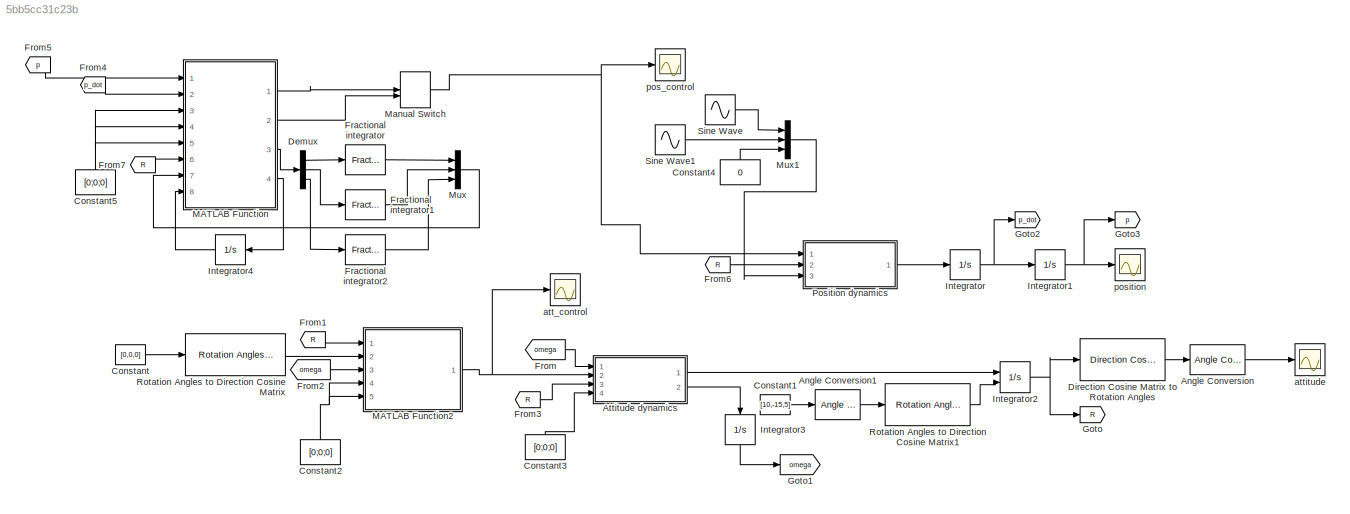
MODEL slx_5bb5cc31c23b
KIND model
CONFIG AbsTol = auto
CONFIG EnableMultiTasking = off
CONFIG FixedStep = .001
CONFIG InitFcn = params
CONFIG MaxStep = auto
CONFIG MinStep = auto
CONFIG RelTol = 1e-3
CONFIG SampleTimeConstraint = Unconstrained
CONFIG SolverName = ode8
CONFIG StartTime = 0.0
CONFIG StopTime = 6
BLOCK [Reference] Angle Conversion  REF=aerolibconvert2/Angle Conversion
  Ports = [1, 1]
  SourceBlock = aerolibconvert2/Angle Conversion
  SourceProductBaseCode = AE
  SourceType = Angle Conversion
BLOCK [Reference] Angle Conversion1  REF=aerolibconvert2/Angle Conversion
  Ports = [1, 1]
  SourceBlock = aerolibconvert2/Angle Conversion
  SourceProductBaseCode = AE
  SourceType = Angle Conversion
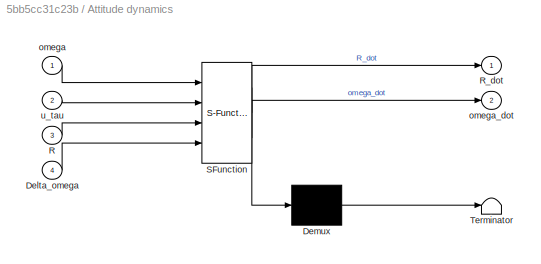
BLOCK [SubSystem] Attitude dynamics
  ErrorFcn = Stateflow.Translate.translate
  PermitHierarchicalResolution = ExplicitOnly
  Ports = [4, 2]
  RequestExecContextInheritance = off
  SFBlockType = MATLAB Function
  TreatAsAtomicUnit = on
BLOCK [Demux] Attitude dynamics/ Demux 
  Outputs = 1
  Ports = [1, 1]
BLOCK [S-Function] Attitude dynamics/ SFunction 
  EnableBusSupport = on
  FunctionName = sf_sfun
  Parameters = J
  PortCounts = [4 3]
  Ports = [4, 3]
  SFcnIsStateOwnerBlock = off
  SFunctionDeploymentMode = off
  Tag = Stateflow S-Function 1
BLOCK [Terminator] Attitude dynamics/ Terminator 
BLOCK [Inport] Attitude dynamics/Delta_omega
  Port = 4
BLOCK [Inport] Attitude dynamics/R
  Port = 3
BLOCK [Outport] Attitude dynamics/R_dot
BLOCK [Inport] Attitude dynamics/omega
BLOCK [Outport] Attitude dynamics/omega_dot
  Port = 2
BLOCK [Inport] Attitude dynamics/u_tau
  Port = 2
BLOCK [Constant] Constant
  Value = [0,0,0]
BLOCK [Constant] Constant1
  Value = [10,-15,5]
BLOCK [Constant] Constant2
  NameLocation = right
  Value = [0;0;0]
BLOCK [Constant] Constant3
  NameLocation = right
  Value = [0;0;0]
BLOCK [Constant] Constant4
  NameLocation = right
  Value = 0
BLOCK [Constant] Constant5
  NameLocation = right
  Value = [0;0;0]
BLOCK [Demux] Demux
  Outputs = 3
  Ports = [1, 3]
BLOCK [Reference] Direction Cosine Matrix to Rotation Angles  REF=sharedtransform/Direction Cosine Matrix
to Rotation Angles
  AttributesFormatString = Rotation Order: %<rotationOrder>
  Ports = [1, 1]
  SourceBlock = sharedtransform/Direction Cosine Matrix\nto Rotation Angles
  SourceProductBaseCode = AE,PW,DR,MT,UV,VE
  SourceType = DCM2Ang
BLOCK [Reference] Fractional integrator  REF=fod/Fractional  (lib defined in slx_5cb2d42c7bef)
integrator
  Ports = [1, 1]
  SourceBlock = fod/Fractional\nintegrator
  SourceProductName = FOMCON Toolbox
  SourceType = Fractional integrator
BLOCK [Reference] Fractional integrator1  REF=fod/Fractional  (lib defined in slx_5cb2d42c7bef)
integrator
  Ports = [1, 1]
  SourceBlock = fod/Fractional\nintegrator
  SourceProductName = FOMCON Toolbox
  SourceType = Fractional integrator
BLOCK [Reference] Fractional integrator2  REF=fod/Fractional  (lib defined in slx_5cb2d42c7bef)
integrator
  Ports = [1, 1]
  SourceBlock = fod/Fractional\nintegrator
  SourceProductName = FOMCON Toolbox
  SourceType = Fractional integrator
BLOCK [From] From
  GotoTag = omega
BLOCK [From] From1
  GotoTag = R
BLOCK [From] From2
  GotoTag = omega
BLOCK [From] From3
  GotoTag = R
BLOCK [From] From4
  GotoTag = p_dot
BLOCK [From] From5
  GotoTag = p
BLOCK [From] From6
  GotoTag = R
BLOCK [From] From7
  GotoTag = R
BLOCK [Goto] Goto
  GotoTag = R
BLOCK [Goto] Goto1
  GotoTag = omega
BLOCK [Goto] Goto2
  GotoTag = p_dot
BLOCK [Goto] Goto3
  GotoTag = p
BLOCK [Integrator] Integrator
  InitialCondition = [0;0;0]
  Ports = [1, 1]
BLOCK [Integrator] Integrator1
  InitialCondition = [2;-1;1.5]
  Ports = [1, 1]
BLOCK [Integrator] Integrator2
  InitialConditionSource = external
  Ports = [2, 1]
BLOCK [Integrator] Integrator3
  InitialCondition = [0;0;0]
  NameLocation = left
  Ports = [1, 1]
BLOCK [Integrator] Integrator4
  InitialCondition = [0;0;0]
  LimitOutput = on
  LowerSaturationLimit = -10
  NameLocation = top
  Ports = [1, 1]
  UpperSaturationLimit = 10
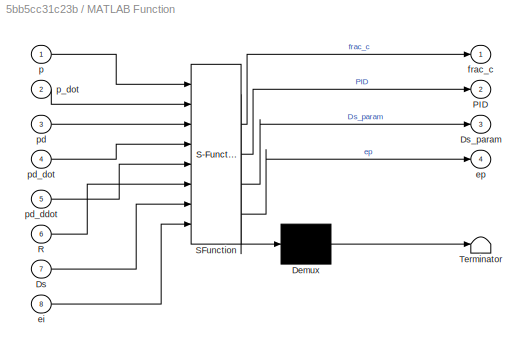
BLOCK [SubSystem] MATLAB Function
  ErrorFcn = Stateflow.Translate.translate
  PermitHierarchicalResolution = ExplicitOnly
  Ports = [8, 4]
  RequestExecContextInheritance = off
  SFBlockType = MATLAB Function
  TreatAsAtomicUnit = on
BLOCK [Demux] MATLAB Function/ Demux 
  Outputs = 1
  Ports = [1, 1]
BLOCK [S-Function] MATLAB Function/ SFunction 
  EnableBusSupport = on
  FunctionName = sf_sfun
  Parameters = A,K1,K1_pid,K2,K2_pid,K3_pid,e3,g,m
  PortCounts = [8 5]
  Ports = [8, 5]
  SFcnIsStateOwnerBlock = off
  SFunctionDeploymentMode = off
  Tag = Stateflow S-Function 4
BLOCK [Terminator] MATLAB Function/ Terminator 
BLOCK [Inport] MATLAB Function/Ds
  Port = 7
BLOCK [Outport] MATLAB Function/Ds_param
  Port = 3
BLOCK [Outport] MATLAB Function/PID
  Port = 2
BLOCK [Inport] MATLAB Function/R
  Port = 6
BLOCK [Inport] MATLAB Function/ei
  Port = 8
BLOCK [Outport] MATLAB Function/ep
  Port = 4
BLOCK [Outport] MATLAB Function/frac_c
BLOCK [Inport] MATLAB Function/p
BLOCK [Inport] MATLAB Function/p_dot
  Port = 2
BLOCK [Inport] MATLAB Function/pd
  Port = 3
BLOCK [Inport] MATLAB Function/pd_ddot
  Port = 5
BLOCK [Inport] MATLAB Function/pd_dot
  Port = 4
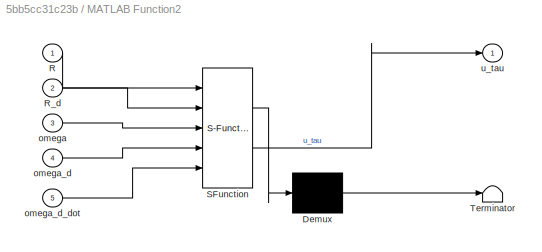
BLOCK [SubSystem] MATLAB Function2
  ErrorFcn = Stateflow.Translate.translate
  PermitHierarchicalResolution = ExplicitOnly
  Ports = [5, 1]
  RequestExecContextInheritance = off
  SFBlockType = MATLAB Function
  TreatAsAtomicUnit = on
BLOCK [Demux] MATLAB Function2/ Demux 
  Outputs = 1
  Ports = [1, 1]
BLOCK [S-Function] MATLAB Function2/ SFunction 
  EnableBusSupport = on
  FunctionName = sf_sfun
  Parameters = J,k3,k4,kR,komega
  PortCounts = [5 2]
  Ports = [5, 2]
  SFcnIsStateOwnerBlock = off
  SFunctionDeploymentMode = off
  Tag = Stateflow S-Function 3
BLOCK [Terminator] MATLAB Function2/ Terminator 
BLOCK [Inport] MATLAB Function2/R
BLOCK [Inport] MATLAB Function2/R_d
  Port = 2
BLOCK [Inport] MATLAB Function2/omega
  Port = 3
BLOCK [Inport] MATLAB Function2/omega_d
  Port = 4
BLOCK [Inport] MATLAB Function2/omega_d_dot
  Port = 5
BLOCK [Outport] MATLAB Function2/u_tau
BLOCK [ManualSwitch] Manual Switch
BLOCK [Mux] Mux
  DisplayOption = bar
  Inputs = 3
  Ports = [3, 1]
BLOCK [Mux] Mux1
  DisplayOption = bar
  Inputs = 3
  Ports = [3, 1]
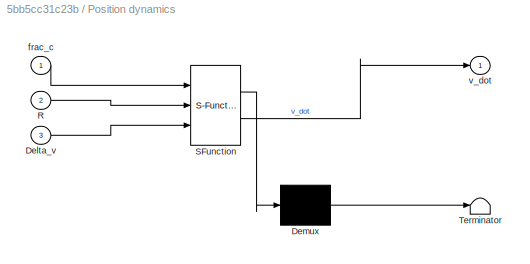
BLOCK [SubSystem] Position dynamics
  ErrorFcn = Stateflow.Translate.translate
  PermitHierarchicalResolution = ExplicitOnly
  Ports = [3, 1]
  RequestExecContextInheritance = off
  SFBlockType = MATLAB Function
  TreatAsAtomicUnit = on
BLOCK [Demux] Position dynamics/ Demux 
  Outputs = 1
  Ports = [1, 1]
BLOCK [S-Function] Position dynamics/ SFunction 
  EnableBusSupport = on
  FunctionName = sf_sfun
  Parameters = e3,g,m
  PortCounts = [3 2]
  Ports = [3, 2]
  SFcnIsStateOwnerBlock = off
  SFunctionDeploymentMode = off
  Tag = Stateflow S-Function 2
BLOCK [Terminator] Position dynamics/ Terminator 
BLOCK [Inport] Position dynamics/Delta_v
  Port = 3
BLOCK [Inport] Position dynamics/R
  Port = 2
BLOCK [Inport] Position dynamics/frac_c
BLOCK [Outport] Position dynamics/v_dot
BLOCK [Reference] Rotation Angles to Direction Cosine Matrix  REF=sharedtransform/Rotation Angles to
Direction Cosine Matrix
  AttributesFormatString = Rotation Order: %<rotationOrder>
  Ports = [1, 1]
  SourceBlock = sharedtransform/Rotation Angles to\nDirection Cosine Matrix
  SourceProductBaseCode = AE,PW,DR,MT,UV,VE
  SourceType = Ang2DCM
BLOCK [Reference] Rotation Angles to Direction Cosine Matrix1  REF=sharedtransform/Rotation Angles to
Direction Cosine Matrix
  AttributesFormatString = Rotation Order: %<rotationOrder>
  Ports = [1, 1]
  SourceBlock = sharedtransform/Rotation Angles to\nDirection Cosine Matrix
  SourceProductBaseCode = AE,PW,DR,MT,UV,VE
  SourceType = Ang2DCM
BLOCK [Sin] Sine Wave
  Amplitude = 20
  Ports = [0, 1]
  SampleTime = 0
BLOCK [Sin] Sine Wave1
  Amplitude = 30
  Frequency = 2
  Ports = [0, 1]
  SampleTime = 0
BLOCK [Scope] att_control
  Floating = off
  NumInputPorts = 1
  Ports = [1]
  ScopeSpecificationString = Simulink.scopes.TimeScopeBlockCfg('CurrentConfiguration', extmgr.ConfigurationSet(extmgr.Configuration('Core','General UI',true),extmgr.Configuration('Core','Source UI',true),extmgr.Configuration('Sources','WiredSimulink',true,'DataLoggingVariableName','attitude_control','DataLogging',true,'DataLoggingSaveFormat','StructureWithTime'),extmgr.Configuration('Visuals','Time Domain',true,'SerializedDis...<+1592ch>
BLOCK [Scope] attitude
  Floating = off
  NumInputPorts = 1
  Ports = [1]
  ScopeSpecificationString = Simulink.scopes.TimeScopeBlockCfg('CurrentConfiguration', extmgr.ConfigurationSet(extmgr.Configuration('Core','General UI',true),extmgr.Configuration('Core','Source UI',true),extmgr.Configuration('Sources','WiredSimulink',true,'DataLoggingVariableName','attitude','DataLogging',true,'DataLoggingSaveFormat','StructureWithTime'),extmgr.Configuration('Visuals','Time Domain',true,'SerializedDisplays',{...<+1574ch>
BLOCK [Scope] pos_control
  Floating = off
  NumInputPorts = 1
  Ports = [1]
  ScopeSpecificationString = Simulink.scopes.TimeScopeBlockCfg('CurrentConfiguration', extmgr.ConfigurationSet(extmgr.Configuration('Core','General UI',true),extmgr.Configuration('Core','Source UI',true),extmgr.Configuration('Sources','WiredSimulink',true,'DataLoggingVariableName','pos_control','DataLogging',true,'DataLoggingSaveFormat','StructureWithTime'),extmgr.Configuration('Visuals','Time Domain',true,'SerializedDisplays...<+1586ch>
BLOCK [Scope] position
  Floating = off
  NumInputPorts = 1
  Ports = [1]
  ScopeSpecificationString = Simulink.scopes.TimeScopeBlockCfg('CurrentConfiguration', extmgr.ConfigurationSet(extmgr.Configuration('Core','General UI',true,'FigureColor',[0 0 0]),extmgr.Configuration('Core','Source UI',true),extmgr.Configuration('Sources','WiredSimulink',true,'DataLogging',true,'DataLoggingVariableName','position','DataLoggingSaveFormat','StructureWithTime'),extmgr.Configuration('Visuals','Time Domain',true,...<+1919ch>
LINE Angle Conversion1:1 -> Rotation Angles to Direction Cosine Matrix1:1
LINE Angle Conversion:1 -> attitude:1
LINE Attitude dynamics:1 -> Integrator2:1
LINE Attitude dynamics:2 -> Integrator3:1
LINE Constant1:1 -> Angle Conversion1:1
NET Constant2:1 -> MATLAB Function2:4, MATLAB Function2:5
LINE Constant3:1 -> Attitude dynamics:4
LINE Constant4:1 -> Mux1:3
NET Constant5:1 -> MATLAB Function:3, MATLAB Function:4, MATLAB Function:5
LINE Constant:1 -> Rotation Angles to Direction Cosine Matrix:1
LINE Demux:1 -> Fractional integrator:1
LINE Demux:2 -> Fractional integrator1:1
LINE Demux:3 -> Fractional integrator2:1
LINE Direction Cosine Matrix to Rotation Angles:1 -> Angle Conversion:1
LINE Fractional integrator1:1 -> Mux:2
LINE Fractional integrator2:1 -> Mux:3
LINE Fractional integrator:1 -> Mux:1
LINE From1:1 -> MATLAB Function2:1
LINE From2:1 -> MATLAB Function2:3
LINE From3:1 -> Attitude dynamics:3
LINE From4:1 -> MATLAB Function:2
LINE From5:1 -> MATLAB Function:1
LINE From6:1 -> Position dynamics:2
LINE From7:1 -> MATLAB Function:6
LINE From:1 -> Attitude dynamics:1
NET Integrator1:1 -> Goto3:1, position:1
NET Integrator2:1 -> Direction Cosine Matrix to Rotation Angles:1, Goto:1
LINE Integrator3:1 -> Goto1:1
LINE Integrator4:1 -> MATLAB Function:8
NET Integrator:1 -> Goto2:1, Integrator1:1
NET MATLAB Function2:1 -> Attitude dynamics:2, att_control:1
LINE MATLAB Function:1 -> Manual Switch:1
LINE MATLAB Function:2 -> Manual Switch:2
LINE MATLAB Function:3 -> Demux:1
LINE MATLAB Function:4 -> Integrator4:1
NET Manual Switch:1 -> Position dynamics:1, pos_control:1
LINE Mux1:1 -> Position dynamics:3
LINE Mux:1 -> MATLAB Function:7
LINE Position dynamics:1 -> Integrator:1
LINE Rotation Angles to Direction Cosine Matrix1:1 -> Integrator2:2
LINE Rotation Angles to Direction Cosine Matrix:1 -> MATLAB Function2:2
LINE Sine Wave1:1 -> Mux1:2
LINE Sine Wave:1 -> Mux1:1
note: NET lines group one-source signal fan-out (src -> all destinations, sorted); 1:1 wires keep LINE
CHART Attitude dynamics states=1 transitions=1
  STATE_LABEL 'eML_blk_kernel()'
  STATE_LABEL 'SCRIPT:\nfunction [R_dot, omega_dot] = fcn(omega,J, u_tau, R, Delta_omega)\n\nomega_hat = [0 -omega(3) omega(2);\n             omega(3) 0 -omega(1);\n             -omega(2) omega(1) 0];\nR_dot = R*omega_hat;\nomega_dot = -J\\(cross(omega,J*omega)) + J\\u_tau + Delta_omega;\n'
CHART Position dynamics states=1 transitions=1
  STATE_LABEL 'eML_blk_kernel()'
  STATE_LABEL 'SCRIPT:\nfunction v_dot = fcn(frac_c,R,Delta_v, g, e3, m)\n\nv_dot = -g*e3 + (1/m)*R*frac_c + Delta_v;\n'
CHART MATLAB Function2 states=1 transitions=1
  STATE_LABEL 'eML_blk_kernel()'
  STATE_LABEL "SCRIPT:\nfunction u_tau = fcn(J, R, R_d, omega, omega_d, omega_d_dot,kR, komega, k3, k4)\n\nomega_hat = [0 -omega(3) omega(2);\n             omega(3) 0 -omega(1);\n             -omega(2) omega(1) 0];\n         \nR_er = R_d'*R;\nerr_R = (R_er - R_er')/2;\n\ne_R = [err_R(3,2); err_R(1,3); err_R(2,1)];\ne_omega = omega - R_er'*omega_d;\n\nv_R = [(abs(e_R(1))^(1/2)) * sign(e_R(1));\n       (abs(e_R(2))^(1/2)) * sig...<+349ch>"
CHART MATLAB Function states=1 transitions=1
  STATE_LABEL 'eML_blk_kernel()'
  STATE_LABEL 'SCRIPT:\nfunction [frac_c,PID,Ds_param,ep] = fcn(p,p_dot,pd,pd_dot,pd_ddot,K1, K2, e3, A, g,R,Ds, m,ei,K3_pid,K2_pid, K1_pid)\n\nep = p - pd;\nev = p_dot - pd_dot;\n\ns = ev + A*ep;\nDs_param = [abs(s(1))^(1/2) * sign(s(1));\n            abs(s(2))^(1/2) * sign(s(2));\n            abs(s(3))^(1/2) * sign(s(3))];\n\n\n\nfrac_c = R \\ (m*(-K1*Ds - K2*s + g*e3 + pd_ddot - A*ev));\n\nPID = R \\ (m*(-K1_pid*ep - K2_pid*e...<+33ch>'
CHART  states=0 transitions=0
CHART  states=0 transitions=0
CHART  states=0 transitions=0
CHART  states=0 transitions=0
